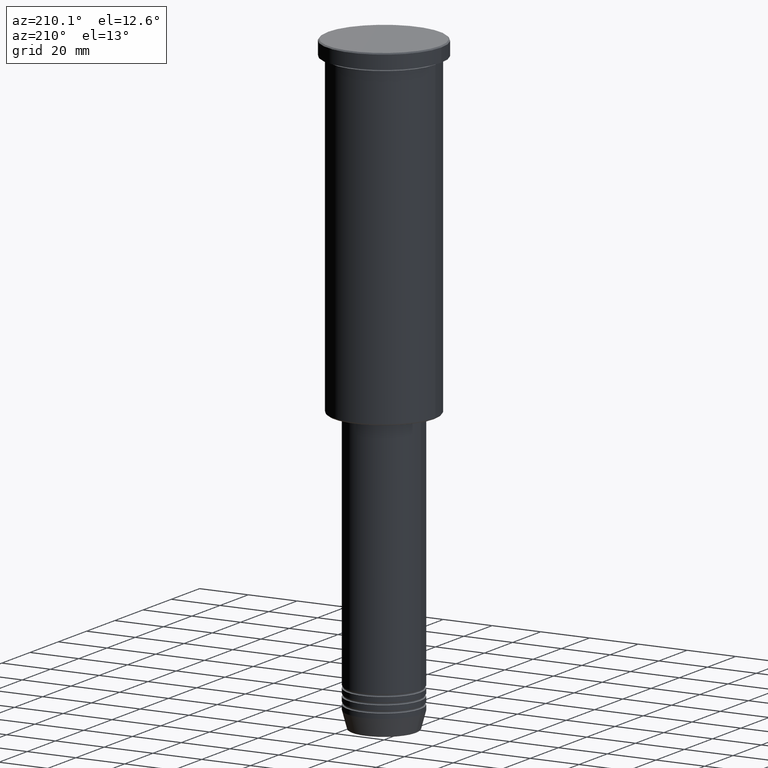
[diagram: clean part render]
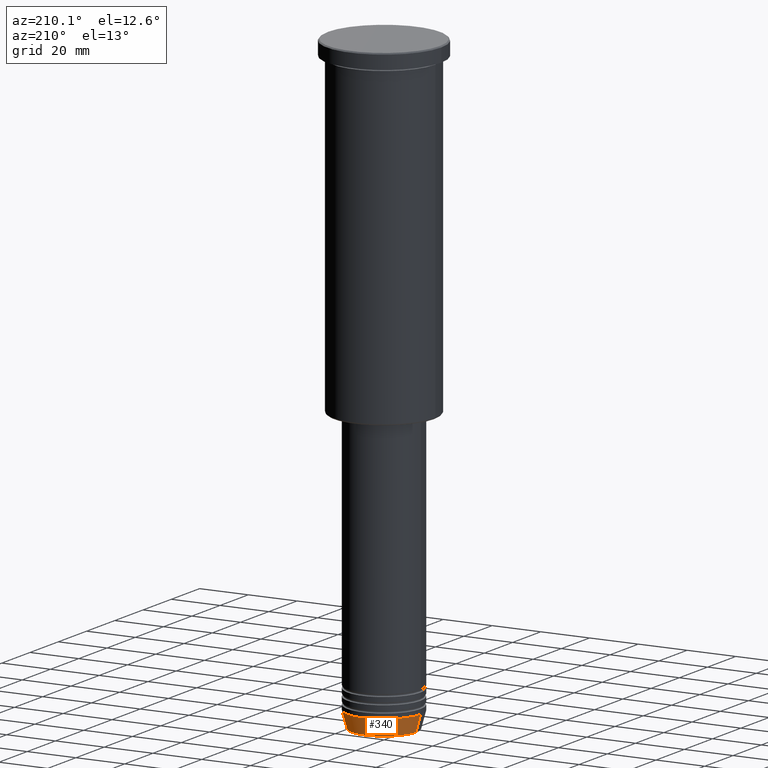
[diagram: same view with one face highlighted and labeled with its STEP entity id]
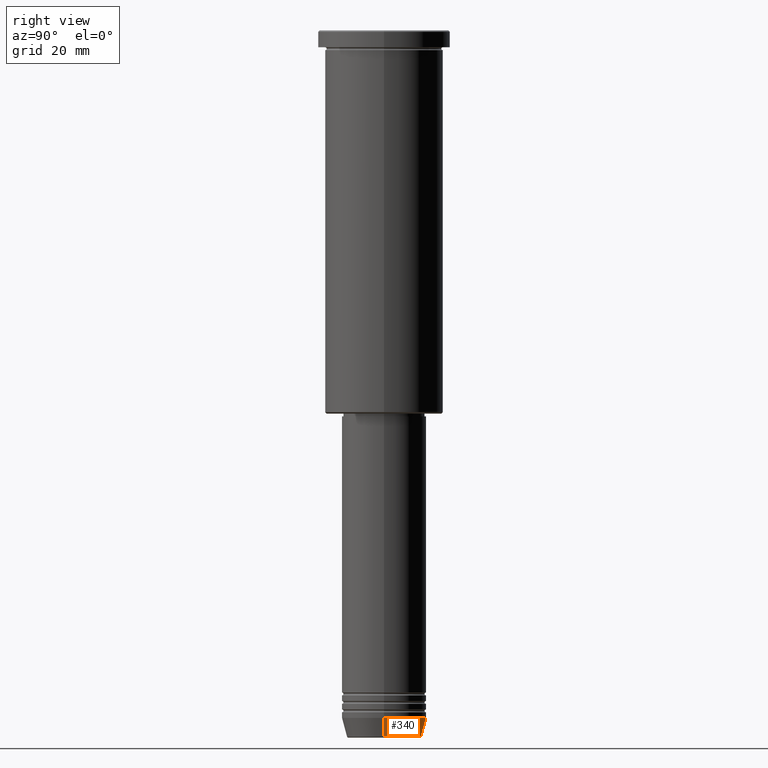
[diagram: same view with one face highlighted and labeled with its STEP entity id]
A machine part, auxiliary view. The second image highlights one B-rep face of the part: STEP entity #340.
A second angle (right view) of the same face is appended — the face is thin or edge-on in the first view.
In plain terms, the highlighted conical surface has half-angle 15 deg.
Its self-contained STEP definition (entity closure, byte-faithful):
#12 = EDGE_CURVE ( 'NONE', #966, #182, #874, .T. ) ;
#22 = CARTESIAN_POINT ( 'NONE',  ( 0.000000000000000000, 0.000000000000000000, -244.0000000000000284 ) ) ;
#48 = CARTESIAN_POINT ( 'NONE',  ( 15.00000000000000000, 0.000000000000000000, -244.0000000000000284 ) ) ;
#140 = EDGE_CURVE ( 'NONE', #717, #966, #348, .T. ) ;
#182 = VERTEX_POINT ( 'NONE', #949 ) ;
#191 = AXIS2_PLACEMENT_3D ( 'NONE', #22, #668, #495 ) ;
#237 = AXIS2_PLACEMENT_3D ( 'NONE', #305, #922, #1127 ) ;
#305 = CARTESIAN_POINT ( 'NONE',  ( 0.000000000000000000, 0.000000000000000000, -250.6294095225512422 ) ) ;
#340 = ADVANCED_FACE ( 'NONE', ( #999 ), #762, .T. ) ;
#348 = CIRCLE ( 'NONE', #237, 13.22365507213719305 ) ;
#350 = AXIS2_PLACEMENT_3D ( 'NONE', #884, #460, #542 ) ;
#424 = CIRCLE ( 'NONE', #191, 15.00000000000000000 ) ;
#449 = DIRECTION ( 'NONE',  ( -0.2588190451025213501, 3.169619151431772337E-17, 0.9659258262890680902 ) ) ;
#460 = DIRECTION ( 'NONE',  ( -0.000000000000000000, -0.000000000000000000, 1.000000000000000000 ) ) ;
#482 = ORIENTED_EDGE ( 'NONE', *, *, #12, .T. ) ;
#495 = DIRECTION ( 'NONE',  ( 1.000000000000000000, 0.000000000000000000, 0.000000000000000000 ) ) ;
#536 = CARTESIAN_POINT ( 'NONE',  ( -13.22365507213719305, 1.728200442216588583E-15, -250.6294095225512422 ) ) ;
#542 = DIRECTION ( 'NONE',  ( 1.000000000000000000, 0.000000000000000000, 0.000000000000000000 ) ) ;
#548 = CARTESIAN_POINT ( 'NONE',  ( 15.00000000000000000, 0.000000000000000000, -244.0000000000000284 ) ) ;
#583 = ORIENTED_EDGE ( 'NONE', *, *, #807, .F. ) ;
#612 = ORIENTED_EDGE ( 'NONE', *, *, #140, .T. ) ;
#633 = CARTESIAN_POINT ( 'NONE',  ( -15.00000000000000000, 1.836970198721029589E-15, -244.0000000000000284 ) ) ;
#668 = DIRECTION ( 'NONE',  ( -0.000000000000000000, -0.000000000000000000, 1.000000000000000000 ) ) ;
#691 = VECTOR ( 'NONE', #1037, 1000.000000000000000 ) ;
#717 = VERTEX_POINT ( 'NONE', #1113 ) ;
#762 = CONICAL_SURFACE ( 'NONE', #350, 15.00000000000000000, 0.2617993877991500740 ) ;
#807 = EDGE_CURVE ( 'NONE', #932, #182, #424, .T. ) ;
#861 = ORIENTED_EDGE ( 'NONE', *, *, #1158, .F. ) ;
#863 = VECTOR ( 'NONE', #449, 1000.000000000000000 ) ;
#869 = EDGE_LOOP ( 'NONE', ( #612, #482, #583, #861 ) ) ;
#874 = LINE ( 'NONE', #633, #863 ) ;
#884 = CARTESIAN_POINT ( 'NONE',  ( 0.000000000000000000, 0.000000000000000000, -244.0000000000000284 ) ) ;
#922 = DIRECTION ( 'NONE',  ( -0.000000000000000000, -0.000000000000000000, 1.000000000000000000 ) ) ;
#932 = VERTEX_POINT ( 'NONE', #548 ) ;
#940 = LINE ( 'NONE', #48, #691 ) ;
#949 = CARTESIAN_POINT ( 'NONE',  ( -15.00000000000000000, 1.836970198721029589E-15, -244.0000000000000284 ) ) ;
#966 = VERTEX_POINT ( 'NONE', #536 ) ;
#999 = FACE_OUTER_BOUND ( 'NONE', #869, .T. ) ;
#1037 = DIRECTION ( 'NONE',  ( 0.2588190451025213501, 0.000000000000000000, 0.9659258262890680902 ) ) ;
#1113 = CARTESIAN_POINT ( 'NONE',  ( 13.22365507213719305, 0.000000000000000000, -250.6294095225512422 ) ) ;
#1127 = DIRECTION ( 'NONE',  ( 1.000000000000000000, 0.000000000000000000, 0.000000000000000000 ) ) ;
#1158 = EDGE_CURVE ( 'NONE', #717, #932, #940, .T. ) ;